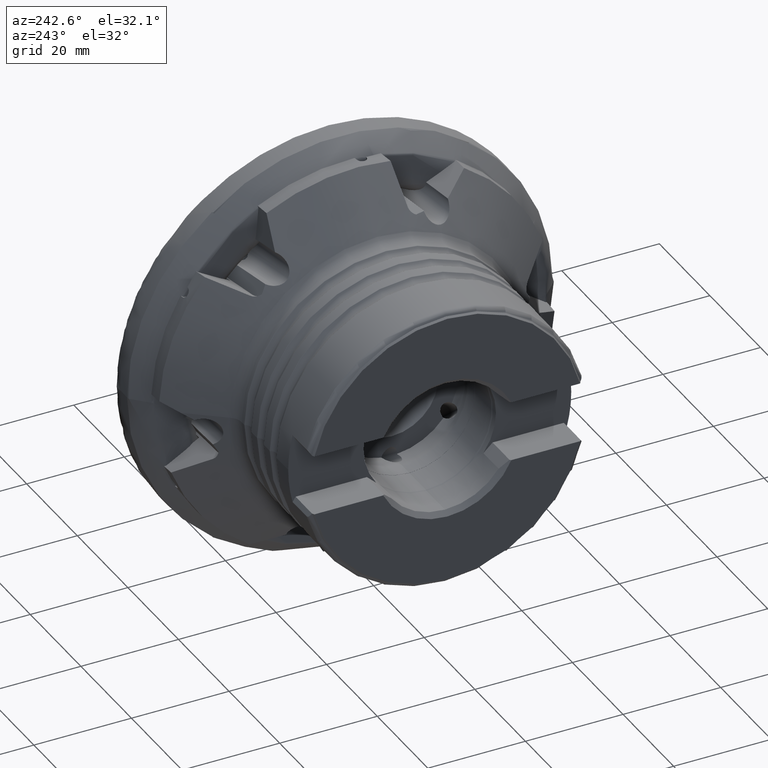
[diagram: clean part render]
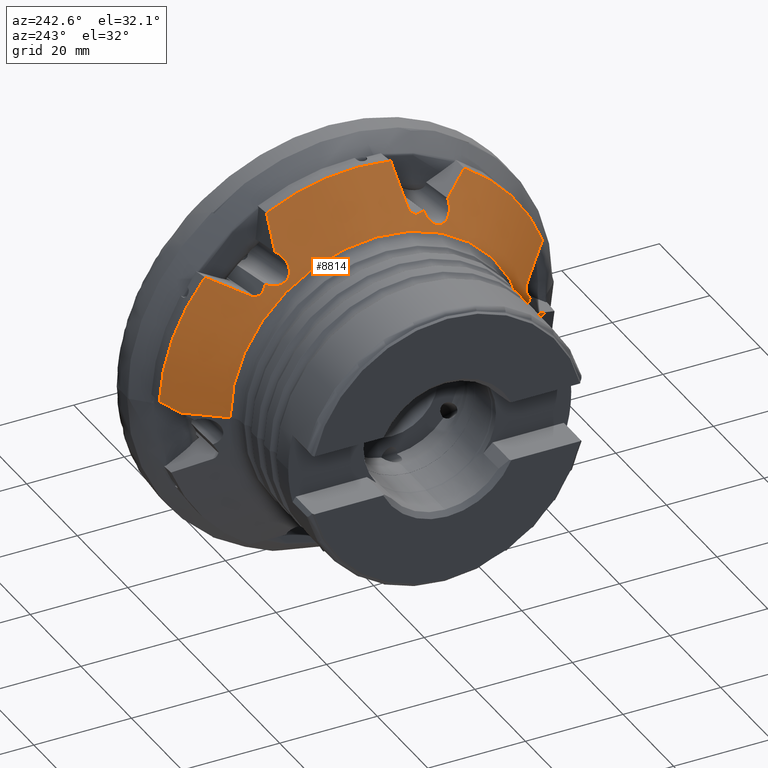
[diagram: same view with one face highlighted and labeled with its STEP entity id]
A machine part, auxiliary view. The second image highlights one B-rep face of the part: STEP entity #8814.
In plain terms, the highlighted conical surface has half-angle 52.12 deg.
Its self-contained STEP definition (entity closure, byte-faithful):
#60 = ORIENTED_EDGE ( 'NONE', *, *, #5824, .F. ) ;
#187 = VERTEX_POINT ( 'NONE', #9917 ) ;
#301 = AXIS2_PLACEMENT_3D ( 'NONE', #5719, #3611, #8317 ) ;
#349 = CARTESIAN_POINT ( 'NONE',  ( -20.53191035383005700, -31.09891763612379400, 3.700706190438604300 ) ) ;
#367 = ORIENTED_EDGE ( 'NONE', *, *, #7430, .F. ) ;
#393 = CARTESIAN_POINT ( 'NONE',  ( -19.32813698998549200, -32.85281436414701500, 0.9075754856589548500 ) ) ;
#404 = B_SPLINE_CURVE_WITH_KNOTS ( 'NONE', 3,
 ( #941, #12041, #4045, #11039, #5024, #12082, #6002, #13085, #6998, #983, #8001, #2017, #8992, #3046, #10025, #4085, #11079, #5066, #12130, #6034, #13124, #7042, #1031, #8038, #2059, #9036, #3087, #10066, #4125, #11122, #5101, #12170, #6081, #13160 ),
 .UNSPECIFIED., .F., .F.,
 ( 4, 2, 2, 2, 2, 2, 2, 2, 2, 2, 2, 2, 2, 2, 2, 2, 4 ),
 ( 2.423241580572312200E-007, 0.001307575764782235600, 0.001961242485094321700, 0.002614909205406407100, 0.003268575925718492900, 0.003922242646030578300, 0.004249076006186625100, 0.004575909366342671900, 0.005229576086654764600, 0.005883242806966857400, 0.006536909527278950100, 0.007190576247591042900, 0.007844242967903135600, 0.008497909688215227500, 0.009151576408527321200, 0.009805243128839413000, 0.01045890984915150500 ),
 .UNSPECIFIED. ) ;
#408 = CARTESIAN_POINT ( 'NONE',  ( -20.07002082571128200, 17.27141744353848600, 26.83451589609489900 ) ) ;
#414 = CARTESIAN_POINT ( 'NONE',  ( -18.67299614523998500, -32.25723788395303200, 9.780671549945624900 ) ) ;
#439 = CARTESIAN_POINT ( 'NONE',  ( -18.44781668979574400, -33.98786952236923800, 0.7832599673557363300 ) ) ;
#444 = CARTESIAN_POINT ( 'NONE',  ( -13.35000000000000500, 18.52162847736817900, 36.07286762299808200 ) ) ;
#447 = CARTESIAN_POINT ( 'NONE',  ( -17.74871450086546400, 18.32106112423273100, 29.69921801289366700 ) ) ;
#693 = CARTESIAN_POINT ( 'NONE',  ( -17.68779383908785600, -34.95837666453000700, 1.044694375687396800 ) ) ;
#789 = CARTESIAN_POINT ( 'NONE',  ( -13.35000000000000100, -6.910210592282299800, 39.95687036756391600 ) ) ;
#840 = B_SPLINE_CURVE_WITH_KNOTS ( 'NONE', 3,
 ( #1212, #7215, #9199, #3259 ),
 .UNSPECIFIED., .F., .F.,
 ( 4, 4 ),
 ( 0.01735655196813864000, 0.01924854367166612200 ),
 .UNSPECIFIED. ) ;
#852 = VERTEX_POINT ( 'NONE', #994 ) ;
#941 = CARTESIAN_POINT ( 'NONE',  ( -19.13790562503851700, -10.75313039755951300, 31.31499999999992700 ) ) ;
#983 = CARTESIAN_POINT ( 'NONE',  ( -20.54294308932776400, -12.41669416767395800, 28.73657452671404800 ) ) ;
#994 = CARTESIAN_POINT ( 'NONE',  ( -21.43421174296403800, 30.15796290571253700, 0.0000000000000000000 ) ) ;
#1031 = CARTESIAN_POINT ( 'NONE',  ( -19.43752468642944500, -15.51085800684743500, 28.81527541554285300 ) ) ;
#1085 = B_SPLINE_CURVE_WITH_KNOTS ( 'NONE', 3,
 ( #3340, #9275, #7323, #1320 ),
 .UNSPECIFIED., .F., .F.,
 ( 4, 4 ),
 ( 3.337997468347535300E-007, 0.008930299138307685700 ),
 .UNSPECIFIED. ) ;
#1119 = CARTESIAN_POINT ( 'NONE',  ( -13.35000000000000000, -1.634903476861717000E-015, 0.0000000000000000000 ) ) ;
#1212 = CARTESIAN_POINT ( 'NONE',  ( -19.56873642703969900, 22.66810556429294000, 23.36768945130978300 ) ) ;
#1213 = ORIENTED_EDGE ( 'NONE', *, *, #8012, .F. ) ;
#1225 = EDGE_CURVE ( 'NONE', #5100, #1836, #12206, .T. ) ;
#1275 = CARTESIAN_POINT ( 'NONE',  ( -19.13790562503851700, -10.75313039755951300, 31.31499999999992700 ) ) ;
#1320 = CARTESIAN_POINT ( 'NONE',  ( -18.67299614523999200, 24.59892897030124800, 23.04525168844818200 ) ) ;
#1380 = CARTESIAN_POINT ( 'NONE',  ( -19.34758293695757600, -32.25531921102425800, 6.171944795337353200 ) ) ;
#1426 = CARTESIAN_POINT ( 'NONE',  ( -20.55686084946876200, -31.12658912357926500, 3.157159859357591400 ) ) ;
#1473 = VERTEX_POINT ( 'NONE', #444 ) ;
#1475 = CARTESIAN_POINT ( 'NONE',  ( -18.66877654356424200, -33.70437591719851900, 0.7563665164113675400 ) ) ;
#1487 = CARTESIAN_POINT ( 'NONE',  ( -19.69815349285019600, 17.18607676588884600, 27.45418216306683900 ) ) ;
#1532 = CARTESIAN_POINT ( 'NONE',  ( -17.43646012122117400, 18.70266596926467900, 29.93481037936062400 ) ) ;
#1707 = CARTESIAN_POINT ( 'NONE',  ( -16.82409201408978200, -36.07652554619652100, 0.8758484315454032600 ) ) ;
#1752 = CARTESIAN_POINT ( 'NONE',  ( -16.30508486717780100, -36.75131776196898400, 0.4370176232126853400 ) ) ;
#1763 = CARTESIAN_POINT ( 'NONE',  ( -17.33792165716884900, -35.39914781119752300, 1.316877446364942600 ) ) ;
#1825 = DIRECTION ( 'NONE',  ( 0.6140123647624576900, -0.7892964056163023200, 9.666093167165157200E-017 ) ) ;
#1836 = VERTEX_POINT ( 'NONE', #10004 ) ;
#1840 = CARTESIAN_POINT ( 'NONE',  ( -15.13349813407131700, -7.160864908734795100, 37.58685032122127000 ) ) ;
#1844 = ORIENTED_EDGE ( 'NONE', *, *, #2981, .F. ) ;
#1918 = EDGE_CURVE ( 'NONE', #852, #11550, #9043, .T. ) ;
#1927 = CARTESIAN_POINT ( 'NONE',  ( -13.35000000000000500, 18.52162847736817900, 36.07286762299808200 ) ) ;
#1946 = CARTESIAN_POINT ( 'NONE',  ( -14.70375579445514100, 18.62488103974918700, 34.06365132502151000 ) ) ;
#1992 = CARTESIAN_POINT ( 'NONE',  ( -17.33792165716885900, 18.84002322782172100, 29.99812255363481800 ) ) ;
#2001 = ORIENTED_EDGE ( 'NONE', *, *, #7571, .F. ) ;
#2011 = CARTESIAN_POINT ( 'NONE',  ( -16.03717606796058000, 18.73052827719856900, 32.04137734377089000 ) ) ;
#2017 = CARTESIAN_POINT ( 'NONE',  ( -20.55042400522112100, -12.91681685873732900, 28.50412686973539800 ) ) ;
#2059 = CARTESIAN_POINT ( 'NONE',  ( -19.04623257589636200, -15.90172644372490200, 29.17554253126909800 ) ) ;
#2139 = DIRECTION ( 'NONE',  ( -1.283395913176429500E-016, 1.000000000000000000, 0.0000000000000000000 ) ) ;
#2169 = ORIENTED_EDGE ( 'NONE', *, *, #3888, .F. ) ;
#2175 = B_SPLINE_CURVE_WITH_KNOTS ( 'NONE', 3,
 ( #12288, #10871, #11302, #11279 ),
 .UNSPECIFIED., .F., .F.,
 ( 4, 4 ),
 ( 0.004784447667640432400, 0.009184911650264110400 ),
 .UNSPECIFIED. ) ;
#2202 = VERTEX_POINT ( 'NONE', #8034 ) ;
#2286 = CARTESIAN_POINT ( 'NONE',  ( -19.13790562503851000, 21.74302032072993600, 24.96998409449311400 ) ) ;
#2361 = VERTEX_POINT ( 'NONE', #3317 ) ;
#2406 = CARTESIAN_POINT ( 'NONE',  ( -18.78464250492744000, 24.46028500282797000, 22.98332381552399500 ) ) ;
#2446 = CARTESIAN_POINT ( 'NONE',  ( -20.50260530538487900, -31.24537740883605600, 2.631802227246331500 ) ) ;
#2458 = CARTESIAN_POINT ( 'NONE',  ( -20.35205913087240900, 19.52036837232704500, 24.78548433611372900 ) ) ;
#2504 = CARTESIAN_POINT ( 'NONE',  ( -19.39174948821849800, 17.20947684061517100, 27.90329556235500200 ) ) ;
#2585 = EDGE_LOOP ( 'NONE', ( #7201, #10280, #10295, #1213, #2001, #9754, #5926, #6478, #1844, #9035, #11022, #12853, #60, #4376, #8537, #2169, #5936, #8013, #13051, #3550, #3917, #367, #11333, #7124 ) ) ;
#2617 = CARTESIAN_POINT ( 'NONE',  ( -13.35000000000000500, 31.14855949789092200, 25.96285310219867200 ) ) ;
#2732 = DIRECTION ( 'NONE',  ( 1.000000000000000000, 1.224646799147353700E-016, -0.0000000000000000000 ) ) ;
#2740 = CARTESIAN_POINT ( 'NONE',  ( -18.25521645135683000, -34.23497746990161500, 0.8067017146957640200 ) ) ;
#2769 = EDGE_CURVE ( 'NONE', #187, #1836, #3355, .T. ) ;
#2774 = CARTESIAN_POINT ( 'NONE',  ( -13.34999999999999600, -38.05877009017319100, 13.99401726536509800 ) ) ;
#2818 = VERTEX_POINT ( 'NONE', #11102 ) ;
#2941 = CARTESIAN_POINT ( 'NONE',  ( -18.89122709090899800, -7.718539219195017500, 32.52371317198317500 ) ) ;
#2958 = VERTEX_POINT ( 'NONE', #9368 ) ;
#2979 = B_SPLINE_CURVE_WITH_KNOTS ( 'NONE', 3,
 ( #11823, #2740, #6748, #693, #7742, #1763 ),
 .UNSPECIFIED., .F., .F.,
 ( 4, 2, 4 ),
 ( 0.01967380727873903700, 0.02060760115775429900, 0.02154139503676955800 ),
 .UNSPECIFIED. ) ;
#2981 = EDGE_CURVE ( 'NONE', #7732, #10359, #7067, .T. ) ;
#3046 = CARTESIAN_POINT ( 'NONE',  ( -20.51850065855567400, -13.22970944813355500, 28.40552877989736300 ) ) ;
#3051 = B_SPLINE_CURVE_WITH_KNOTS ( 'NONE', 3,
 ( #4792, #8750, #11880, #5804 ),
 .UNSPECIFIED., .F., .F.,
 ( 4, 4 ),
 ( 0.01605224761913874900, 0.01793870707272481400 ),
 .UNSPECIFIED. ) ;
#3087 = CARTESIAN_POINT ( 'NONE',  ( -18.64082278672837500, -16.20700579546804900, 29.60259797144029600 ) ) ;
#3256 = B_SPLINE_CURVE_WITH_KNOTS ( 'NONE', 3,
 ( #7422, #7385, #8409, #2458, #9427, #3497, #10463, #4502, #11549, #5474, #12549, #6471, #408, #7469, #1487, #8452, #2504, #9465, #3539, #10510, #4552, #11586, #5520, #12589, #6510, #447, #7516, #1532, #8494 ),
 .UNSPECIFIED., .F., .F.,
 ( 4, 2, 2, 2, 2, 2, 2, 2, 2, 2, 2, 2, 1, 2, 4 ),
 ( 0.004387610324422419600, 0.004925790725347831500, 0.005463971126273243400, 0.006540331928124068000, 0.007078512329049483300, 0.007616692729974899500, 0.008693053531825725000, 0.009231233932751145600, 0.009769414333676562600, 0.01030759473460198000, 0.01084577513552740000, 0.01138395553645281700, 0.01192213593737823600, 0.01246031633830365500, 0.01299849673922907400 ),
 .UNSPECIFIED. ) ;
#3259 = CARTESIAN_POINT ( 'NONE',  ( -19.13790562503851000, 21.74302032072993600, 24.96998409449311400 ) ) ;
#3286 = VERTEX_POINT ( 'NONE', #7589 ) ;
#3317 = CARTESIAN_POINT ( 'NONE',  ( -19.56873642703969900, 22.66810556429294000, 23.36768945130978300 ) ) ;
#3340 = CARTESIAN_POINT ( 'NONE',  ( -13.35000000000000500, 31.14855949789092200, 25.96285310219867200 ) ) ;
#3342 = CARTESIAN_POINT ( 'NONE',  ( -13.34999999999999400, -40.54999999999999700, 4.965942770542516900E-015 ) ) ;
#3355 = LINE ( 'NONE', #3342, #4003 ) ;
#3387 = AXIS2_PLACEMENT_3D ( 'NONE', #12396, #7317, #5325 ) ;
#3434 = CARTESIAN_POINT ( 'NONE',  ( -19.08373192855588800, 23.98972347960159700, 22.92113743458514500 ) ) ;
#3486 = CARTESIAN_POINT ( 'NONE',  ( -20.37118376889024100, -31.45176179490016800, 2.145835207566176200 ) ) ;
#3497 = CARTESIAN_POINT ( 'NONE',  ( -20.52825328581205600, 18.85209652616744000, 25.01631178896399600 ) ) ;
#3539 = CARTESIAN_POINT ( 'NONE',  ( -19.06722445239076800, 17.30885758315604100, 28.33174937566975200 ) ) ;
#3550 = ORIENTED_EDGE ( 'NONE', *, *, #6082, .F. ) ;
#3603 = CARTESIAN_POINT ( 'NONE',  ( -17.33792165716884900, -35.39914781119752300, 1.316877446364942600 ) ) ;
#3611 = DIRECTION ( 'NONE',  ( 1.000000000000000000, 1.224646799147353700E-016, -0.0000000000000000000 ) ) ;
#3620 = CARTESIAN_POINT ( 'NONE',  ( -15.78180706918503500, -37.42397731867724500, -7.065009996000125700E-015 ) ) ;
#3888 = EDGE_CURVE ( 'NONE', #2202, #1473, #5065, .T. ) ;
#3893 = CARTESIAN_POINT ( 'NONE',  ( -18.78464250492744000, -7.673999786233761900, 32.67489010401853000 ) ) ;
#3911 = CARTESIAN_POINT ( 'NONE',  ( -19.43675162790003300, -31.88127369441804500, 7.410014151258654800 ) ) ;
#3917 = ORIENTED_EDGE ( 'NONE', *, *, #6426, .F. ) ;
#3989 = CARTESIAN_POINT ( 'NONE',  ( -19.17149036419708700, -7.948860421014799700, 32.09730829230861800 ) ) ;
#4003 = VECTOR ( 'NONE', #1825, 1000.000000000000200 ) ;
#4044 = VERTEX_POINT ( 'NONE', #4843 ) ;
#4045 = CARTESIAN_POINT ( 'NONE',  ( -19.62906548280289000, -10.88510391595937700, 30.60126616452427900 ) ) ;
#4085 = CARTESIAN_POINT ( 'NONE',  ( -20.43503618690427700, -13.65670369286700000, 28.32244786492447700 ) ) ;
#4125 = CARTESIAN_POINT ( 'NONE',  ( -18.23756024525300400, -16.42130891718855400, 30.07625870733616900 ) ) ;
#4197 = EDGE_CURVE ( 'NONE', #11550, #2818, #2175, .T. ) ;
#4260 = CARTESIAN_POINT ( 'NONE',  ( -18.67299614523998800, -7.658308913651805700, 32.82592323839393300 ) ) ;
#4266 = AXIS2_PLACEMENT_3D ( 'NONE', #8682, #2732, #9692 ) ;
#4340 = CARTESIAN_POINT ( 'NONE',  ( -19.81021439846698200, 20.74122426229869400, 24.69020266704735200 ) ) ;
#4361 = VERTEX_POINT ( 'NONE', #9489 ) ;
#4368 = AXIS2_PLACEMENT_3D ( 'NONE', #8890, #8586, #7945 ) ;
#4376 = ORIENTED_EDGE ( 'NONE', *, *, #10362, .F. ) ;
#4414 = CARTESIAN_POINT ( 'NONE',  ( -19.13790562503851000, -32.49615071828940000, 6.345015905506690100 ) ) ;
#4438 = CARTESIAN_POINT ( 'NONE',  ( -18.67299614523998500, -32.25723788395303200, 9.780671549945624900 ) ) ;
#4455 = CARTESIAN_POINT ( 'NONE',  ( -19.39990855374677300, 23.31994039169957800, 23.02885931976733100 ) ) ;
#4459 = CARTESIAN_POINT ( 'NONE',  ( -19.54442098411075400, -32.03742348957600000, 5.964361522395767800 ) ) ;
#4496 = CARTESIAN_POINT ( 'NONE',  ( -20.17279657104035500, -31.73311211746522500, 1.721954831791988600 ) ) ;
#4502 = CARTESIAN_POINT ( 'NONE',  ( -20.54223651949924100, 18.10969692828936300, 25.53524034965446500 ) ) ;
#4527 = VERTEX_POINT ( 'NONE', #8289 ) ;
#4552 = CARTESIAN_POINT ( 'NONE',  ( -18.73600056467667200, 17.47556567796053900, 28.72876844233148900 ) ) ;
#4627 = CARTESIAN_POINT ( 'NONE',  ( -18.89122709090900200, -32.02563144193354100, 9.577405542062125600 ) ) ;
#4642 = CARTESIAN_POINT ( 'NONE',  ( -19.08373192855588500, -31.84514904178606500, 9.315141245806296800 ) ) ;
#4665 = CARTESIAN_POINT ( 'NONE',  ( -18.78464250492743700, -32.13428478906170900, 9.691566288494394500 ) ) ;
#4724 = CARTESIAN_POINT ( 'NONE',  ( -16.03707588452182300, -18.38352311772189700, 32.24187336854071600 ) ) ;
#4792 = CARTESIAN_POINT ( 'NONE',  ( -19.56873642703969600, -8.902959910433525100, 31.31499999999994100 ) ) ;
#4832 = B_SPLINE_CURVE_WITH_KNOTS ( 'NONE', 3,
 ( #10908, #3911, #12973, #6894 ),
 .UNSPECIFIED., .F., .F.,
 ( 4, 4 ),
 ( 0.01735655196813856400, 0.01924854367166603200 ),
 .UNSPECIFIED. ) ;
#4843 = CARTESIAN_POINT ( 'NONE',  ( -17.33792165716885900, -16.55912458337587300, 31.31499999999987000 ) ) ;
#4868 = EDGE_CURVE ( 'NONE', #1473, #7016, #5046, .T. ) ;
#4902 = CARTESIAN_POINT ( 'NONE',  ( -18.67299614523998800, -7.658308913651805700, 32.82592323839393300 ) ) ;
#4955 = FACE_OUTER_BOUND ( 'NONE', #2585, .T. ) ;
#4975 = CARTESIAN_POINT ( 'NONE',  ( -19.50616842256001600, -8.577047331390589900, 31.49127487094713400 ) ) ;
#5007 = B_SPLINE_CURVE_WITH_KNOTS ( 'NONE', 3,
 ( #10885, #3893, #2941, #9924, #3989, #10983, #4975, #12033 ),
 .UNSPECIFIED., .F., .F.,
 ( 4, 2, 2, 4 ),
 ( 0.0000000000000000000, 0.0005632919519508322300, 0.001126583903901664500, 0.002253167807803311600 ),
 .UNSPECIFIED. ) ;
#5024 = CARTESIAN_POINT ( 'NONE',  ( -20.04567060910675000, -11.22930884474898100, 29.90449412105993000 ) ) ;
#5046 = CIRCLE ( 'NONE', #4368, 40.54999999999999700 ) ;
#5065 = B_SPLINE_CURVE_WITH_KNOTS ( 'NONE', 3,
 ( #1992, #2011, #1946, #1927 ),
 .UNSPECIFIED., .F., .F.,
 ( 4, 4 ),
 ( 0.002773552780315555100, 0.01004718225931144700 ),
 .UNSPECIFIED. ) ;
#5066 = CARTESIAN_POINT ( 'NONE',  ( -20.21607621580310600, -14.28325091071246600, 28.32709186074084700 ) ) ;
#5100 = VERTEX_POINT ( 'NONE', #6055 ) ;
#5101 = CARTESIAN_POINT ( 'NONE',  ( -17.83923611411979900, -16.54583890171420200, 30.59139654158942500 ) ) ;
#5232 = EDGE_CURVE ( 'NONE', #4527, #9166, #6968, .T. ) ;
#5306 = B_SPLINE_CURVE_WITH_KNOTS ( 'NONE', 3,
 ( #2286, #9256, #10286, #4340, #11371, #5309 ),
 .UNSPECIFIED., .F., .F.,
 ( 4, 2, 4 ),
 ( 0.002536588788353720200, 0.003462099556388069900, 0.004387610324422419600 ),
 .UNSPECIFIED. ) ;
#5309 = CARTESIAN_POINT ( 'NONE',  ( -20.08692413420288900, 20.18706131802989400, 24.68696096278501200 ) ) ;
#5325 = DIRECTION ( 'NONE',  ( -1.283395913176429500E-016, 1.000000000000000000, 0.0000000000000000000 ) ) ;
#5358 = VERTEX_POINT ( 'NONE', #1275 ) ;
#5413 = CARTESIAN_POINT ( 'NONE',  ( -19.56873642703969900, 22.66810556429294000, 23.36768945130978300 ) ) ;
#5416 = CARTESIAN_POINT ( 'NONE',  ( -20.07211615594276600, -31.48432677796171600, 5.195856934551891900 ) ) ;
#5465 = CARTESIAN_POINT ( 'NONE',  ( -19.92400687685232800, -32.07000255310754300, 1.375857453316458500 ) ) ;
#5474 = CARTESIAN_POINT ( 'NONE',  ( -20.45240453513358900, 17.74782911573619500, 25.92804805281475900 ) ) ;
#5480 = CARTESIAN_POINT ( 'NONE',  ( -13.34999999999999600, -38.05877009017319100, 13.99401726536509800 ) ) ;
#5520 = CARTESIAN_POINT ( 'NONE',  ( -18.40123763206007400, 17.70439963151147800, 29.09326773314945300 ) ) ;
#5700 = CARTESIAN_POINT ( 'NONE',  ( -14.70366655592763100, -20.18766497799136400, 33.16150611392993100 ) ) ;
#5701 = AXIS2_PLACEMENT_3D ( 'NONE', #1119, #8111, #2139 ) ;
#5719 = CARTESIAN_POINT ( 'NONE',  ( -13.35000000000000000, -1.634903476861717000E-015, 0.0000000000000000000 ) ) ;
#5804 = CARTESIAN_POINT ( 'NONE',  ( -19.13790562503851700, -10.75313039755951300, 31.31499999999992700 ) ) ;
#5824 = EDGE_CURVE ( 'NONE', #11026, #4361, #5007, .T. ) ;
#5926 = ORIENTED_EDGE ( 'NONE', *, *, #5232, .F. ) ;
#5936 = ORIENTED_EDGE ( 'NONE', *, *, #11187, .F. ) ;
#6002 = CARTESIAN_POINT ( 'NONE',  ( -20.29880109884864600, -11.59042090888604900, 29.41711924328050300 ) ) ;
#6034 = CARTESIAN_POINT ( 'NONE',  ( -19.91759811020478200, -14.85708949535020600, 28.46367605331141700 ) ) ;
#6055 = CARTESIAN_POINT ( 'NONE',  ( -17.33792165716884900, -35.39914781119752300, 1.316877446364942600 ) ) ;
#6081 = CARTESIAN_POINT ( 'NONE',  ( -17.45899378529432200, -16.57614016132186300, 31.12994749367951600 ) ) ;
#6082 = EDGE_CURVE ( 'NONE', #2958, #2361, #12835, .T. ) ;
#6293 = CARTESIAN_POINT ( 'NONE',  ( -15.78180706918472600, 37.42397731867765700, 1.313674792309632300E-014 ) ) ;
#6415 = CARTESIAN_POINT ( 'NONE',  ( -20.44567240532511600, -31.14427239630760300, 4.233100406005434900 ) ) ;
#6426 = EDGE_CURVE ( 'NONE', #6588, #2958, #1085, .T. ) ;
#6461 = CARTESIAN_POINT ( 'NONE',  ( -19.54131292816434100, -32.57562149189669000, 1.024240799332891000 ) ) ;
#6471 = CARTESIAN_POINT ( 'NONE',  ( -20.23024893545763100, 17.38232241987686400, 26.51786844033769000 ) ) ;
#6474 = CARTESIAN_POINT ( 'NONE',  ( -16.90969219147109500, -34.19911649922460100, 11.18796920173114300 ) ) ;
#6478 = ORIENTED_EDGE ( 'NONE', *, *, #12855, .F. ) ;
#6510 = CARTESIAN_POINT ( 'NONE',  ( -17.96109113495569100, 18.08861101705742400, 29.52167515760979200 ) ) ;
#6588 = VERTEX_POINT ( 'NONE', #2617 ) ;
#6612 = CARTESIAN_POINT ( 'NONE',  ( -17.33792165716885900, -16.55912458337587300, 31.31499999999987000 ) ) ;
#6617 = B_SPLINE_CURVE_WITH_KNOTS ( 'NONE', 3,
 ( #6612, #4724, #5700, #12775 ),
 .UNSPECIFIED., .F., .F.,
 ( 4, 4 ),
 ( 0.0001312978652771379200, 0.007405046458793385400 ),
 .UNSPECIFIED. ) ;
#6667 = EDGE_CURVE ( 'NONE', #4361, #5358, #3051, .T. ) ;
#6743 = EDGE_CURVE ( 'NONE', #9166, #7946, #4832, .T. ) ;
#6748 = CARTESIAN_POINT ( 'NONE',  ( -18.06369279143671800, -34.47995746568739900, 0.8638218953870092600 ) ) ;
#6774 = CARTESIAN_POINT ( 'NONE',  ( -13.35000000000000500, 40.54999999999999700, 0.0000000000000000000 ) ) ;
#6894 = CARTESIAN_POINT ( 'NONE',  ( -19.13790562503851000, -32.49615071828940000, 6.345015905506690100 ) ) ;
#6968 = B_SPLINE_CURVE_WITH_KNOTS ( 'NONE', 3,
 ( #4438, #4665, #4627, #4642, #12891, #12823, #12685, #7379 ),
 .UNSPECIFIED., .F., .F.,
 ( 4, 2, 2, 4 ),
 ( 1.734723475976807100E-018, 0.0005632919519508327800, 0.001126583903901663800, 0.002253167807803315100 ),
 .UNSPECIFIED. ) ;
#6998 = CARTESIAN_POINT ( 'NONE',  ( -20.47775952885312400, -12.05630191639227900, 28.98040010682294800 ) ) ;
#7016 = VERTEX_POINT ( 'NONE', #9207 ) ;
#7042 = CARTESIAN_POINT ( 'NONE',  ( -19.56466616607158200, -15.35996237392826000, 28.71088168575997600 ) ) ;
#7067 = CIRCLE ( 'NONE', #301, 40.54999999999999700 ) ;
#7124 = ORIENTED_EDGE ( 'NONE', *, *, #1918, .F. ) ;
#7201 = ORIENTED_EDGE ( 'NONE', *, *, #11939, .T. ) ;
#7215 = CARTESIAN_POINT ( 'NONE',  ( -19.43675162790003300, 22.35789734460131600, 23.90498584874115900 ) ) ;
#7317 = DIRECTION ( 'NONE',  ( 1.000000000000000000, 1.224646799147353700E-016, -0.0000000000000000000 ) ) ;
#7323 = CARTESIAN_POINT ( 'NONE',  ( -16.90969396756930000, 26.78862158948658500, 24.02331808928226300 ) ) ;
#7379 = CARTESIAN_POINT ( 'NONE',  ( -19.56873642703969600, -31.57106547472643500, 7.947310548690030200 ) ) ;
#7385 = CARTESIAN_POINT ( 'NONE',  ( -20.16261651457318400, 20.02208766557320300, 24.69617362872244100 ) ) ;
#7414 = CARTESIAN_POINT ( 'NONE',  ( -20.54919536120863900, -31.09789913704126700, 3.517035886651194200 ) ) ;
#7422 = CARTESIAN_POINT ( 'NONE',  ( -20.08692413420288900, 20.18706131802989400, 24.68696096278501200 ) ) ;
#7428 = CARTESIAN_POINT ( 'NONE',  ( -15.13349574849280900, -36.13160225854056800, 12.59193611198146500 ) ) ;
#7430 = EDGE_CURVE ( 'NONE', #2818, #6588, #9308, .T. ) ;
#7457 = CARTESIAN_POINT ( 'NONE',  ( -18.89417609575554400, -33.41422006176302500, 0.7743685588672039000 ) ) ;
#7469 = CARTESIAN_POINT ( 'NONE',  ( -19.79627641985014800, 17.19639739313954500, 27.29884960185604500 ) ) ;
#7511 = VERTEX_POINT ( 'NONE', #11401 ) ;
#7516 = CARTESIAN_POINT ( 'NONE',  ( -17.53935193146961800, 18.57005723134597400, 29.86156599630606600 ) ) ;
#7571 = EDGE_CURVE ( 'NONE', #7946, #8396, #12892, .T. ) ;
#7589 = CARTESIAN_POINT ( 'NONE',  ( -20.08692413420288900, 20.18706131802989400, 24.68696096278501200 ) ) ;
#7732 = VERTEX_POINT ( 'NONE', #9301 ) ;
#7742 = CARTESIAN_POINT ( 'NONE',  ( -17.50783591441897300, -35.18617647119140900, 1.166344262262966700 ) ) ;
#7945 = DIRECTION ( 'NONE',  ( -1.283395913176429500E-016, 1.000000000000000000, 0.0000000000000000000 ) ) ;
#7946 = VERTEX_POINT ( 'NONE', #8647 ) ;
#8001 = CARTESIAN_POINT ( 'NONE',  ( -20.55788831655602800, -12.61374646923964700, 28.62967333747729300 ) ) ;
#8012 = EDGE_CURVE ( 'NONE', #8396, #5100, #2979, .T. ) ;
#8013 = ORIENTED_EDGE ( 'NONE', *, *, #9320, .F. ) ;
#8034 = CARTESIAN_POINT ( 'NONE',  ( -17.33792165716885900, 18.84002322782172100, 29.99812255363481800 ) ) ;
#8038 = CARTESIAN_POINT ( 'NONE',  ( -19.17837348940991800, -15.78146681764103900, 29.04765645631432100 ) ) ;
#8111 = DIRECTION ( 'NONE',  ( 1.000000000000000000, 1.224646799147353700E-016, -0.0000000000000000000 ) ) ;
#8187 = B_SPLINE_CURVE_WITH_KNOTS ( 'NONE', 3,
 ( #5480, #7428, #6474, #414 ),
 .UNSPECIFIED., .F., .F.,
 ( 4, 4 ),
 ( 3.338000833442601500E-007, 0.008930300667216705900 ),
 .UNSPECIFIED. ) ;
#8289 = CARTESIAN_POINT ( 'NONE',  ( -18.67299614523998500, -32.25723788395303200, 9.780671549945624900 ) ) ;
#8317 = DIRECTION ( 'NONE',  ( -1.283395913176429500E-016, 1.000000000000000000, 0.0000000000000000000 ) ) ;
#8351 = CARTESIAN_POINT ( 'NONE',  ( -18.67299614523999200, 24.59892897030124800, 23.04525168844818200 ) ) ;
#8396 = VERTEX_POINT ( 'NONE', #439 ) ;
#8400 = CARTESIAN_POINT ( 'NONE',  ( -20.54772879209003700, -31.15581837816141000, 2.980064195806644700 ) ) ;
#8409 = CARTESIAN_POINT ( 'NONE',  ( -20.23185102754181800, 19.85407164468784600, 24.71750226650961900 ) ) ;
#8442 = CARTESIAN_POINT ( 'NONE',  ( -18.44781668979574400, -33.98786952236923800, 0.7832599673557363300 ) ) ;
#8448 = CIRCLE ( 'NONE', #4266, 30.15796290571254400 ) ;
#8452 = CARTESIAN_POINT ( 'NONE',  ( -19.49601636777390100, 17.19276218747360100, 27.75611925069868800 ) ) ;
#8494 = CARTESIAN_POINT ( 'NONE',  ( -17.33792165716885900, 18.84002322782172100, 29.99812255363481800 ) ) ;
#8537 = ORIENTED_EDGE ( 'NONE', *, *, #4868, .F. ) ;
#8579 = DIRECTION ( 'NONE',  ( 0.6140123647624575700, 0.7892964056163025400, 0.0000000000000000000 ) ) ;
#8586 = DIRECTION ( 'NONE',  ( 1.000000000000000000, 1.224646799147353700E-016, -0.0000000000000000000 ) ) ;
#8647 = CARTESIAN_POINT ( 'NONE',  ( -19.13790562503851000, -32.49615071828940000, 6.345015905506690100 ) ) ;
#8682 = CARTESIAN_POINT ( 'NONE',  ( -21.43421174296403500, -2.624933880326752800E-015, 0.0000000000000000000 ) ) ;
#8736 = VECTOR ( 'NONE', #8579, 1000.000000000000000 ) ;
#8750 = CARTESIAN_POINT ( 'NONE',  ( -19.43675260150902100, -9.523371773206257300, 31.31499999999993400 ) ) ;
#8814 = ADVANCED_FACE ( 'NONE', ( #4955 ), #12051, .T. ) ;
#8890 = CARTESIAN_POINT ( 'NONE',  ( -13.35000000000000000, -1.634903476861717000E-015, 0.0000000000000000000 ) ) ;
#8992 = CARTESIAN_POINT ( 'NONE',  ( -20.54310626985585800, -13.01977481481367400, 28.46758671430093600 ) ) ;
#9035 = ORIENTED_EDGE ( 'NONE', *, *, #10249, .F. ) ;
#9036 = CARTESIAN_POINT ( 'NONE',  ( -18.77743892260357600, -16.11467475406746200, 29.45294436171678500 ) ) ;
#9043 = LINE ( 'NONE', #6774, #8736 ) ;
#9138 = B_SPLINE_CURVE_WITH_KNOTS ( 'NONE', 3,
 ( #789, #1840, #10886, #4902 ),
 .UNSPECIFIED., .F., .F.,
 ( 4, 4 ),
 ( 3.337995381559939800E-007, 0.008930298026350390300 ),
 .UNSPECIFIED. ) ;
#9166 = VERTEX_POINT ( 'NONE', #12179 ) ;
#9199 = CARTESIAN_POINT ( 'NONE',  ( -19.29281274383083700, 22.04958779090700800, 24.43899366019858000 ) ) ;
#9207 = CARTESIAN_POINT ( 'NONE',  ( -13.35000000000000100, -6.910210592282299800, 39.95687036756391600 ) ) ;
#9256 = CARTESIAN_POINT ( 'NONE',  ( -19.31686517883995800, 21.51231954087435500, 24.86583095479950600 ) ) ;
#9275 = CARTESIAN_POINT ( 'NONE',  ( -15.13349724122898400, 28.97073586230092300, 24.99491656920528700 ) ) ;
#9301 = CARTESIAN_POINT ( 'NONE',  ( -13.34999999999999800, -21.97920551018551200, 34.07663459235712400 ) ) ;
#9308 = CIRCLE ( 'NONE', #5701, 40.54999999999999700 ) ;
#9320 = EDGE_CURVE ( 'NONE', #7511, #3286, #5306, .T. ) ;
#9368 = CARTESIAN_POINT ( 'NONE',  ( -18.67299614523999200, 24.59892897030124800, 23.04525168844818200 ) ) ;
#9372 = CARTESIAN_POINT ( 'NONE',  ( -18.89122709090901300, 24.30709222273853200, 22.94630762992093100 ) ) ;
#9419 = CARTESIAN_POINT ( 'NONE',  ( -20.46634221787677900, -31.30590363580049700, 2.461893037943496200 ) ) ;
#9427 = CARTESIAN_POINT ( 'NONE',  ( -20.40365396300105500, 19.35342414092914600, 24.83214254925158200 ) ) ;
#9465 = CARTESIAN_POINT ( 'NONE',  ( -19.17758681363339000, 17.26734537303887500, 28.19087061236517000 ) ) ;
#9489 = CARTESIAN_POINT ( 'NONE',  ( -19.56873642703969600, -8.902959910433525100, 31.31499999999994100 ) ) ;
#9509 = EDGE_CURVE ( 'NONE', #5358, #4044, #404, .T. ) ;
#9584 = EDGE_CURVE ( 'NONE', #2361, #7511, #840, .T. ) ;
#9692 = DIRECTION ( 'NONE',  ( -1.150424835656399400E-016, 1.000000000000000000, 0.0000000000000000000 ) ) ;
#9754 = ORIENTED_EDGE ( 'NONE', *, *, #6743, .F. ) ;
#9917 = CARTESIAN_POINT ( 'NONE',  ( -21.43421174296403100, -30.15796290571254400, 3.693285274128547500E-015 ) ) ;
#9924 = CARTESIAN_POINT ( 'NONE',  ( -19.08373192855588500, -7.855425562184475300, 32.23627868039156400 ) ) ;
#10004 = CARTESIAN_POINT ( 'NONE',  ( -15.78180706918503500, -37.42397731867724500, -7.065009996000125700E-015 ) ) ;
#10025 = CARTESIAN_POINT ( 'NONE',  ( -20.50100783309561700, -13.33740724325584800, 28.37995335982459700 ) ) ;
#10066 = CARTESIAN_POINT ( 'NONE',  ( -18.37141551254007900, -16.35987905300466100, 29.91371950471075200 ) ) ;
#10249 = EDGE_CURVE ( 'NONE', #4044, #7732, #6617, .T. ) ;
#10280 = ORIENTED_EDGE ( 'NONE', *, *, #2769, .T. ) ;
#10286 = CARTESIAN_POINT ( 'NONE',  ( -19.49135808049620200, 21.26090422288121200, 24.78669304665555400 ) ) ;
#10295 = ORIENTED_EDGE ( 'NONE', *, *, #1225, .F. ) ;
#10359 = VERTEX_POINT ( 'NONE', #2774 ) ;
#10362 = EDGE_CURVE ( 'NONE', #7016, #11026, #9138, .T. ) ;
#10406 = CARTESIAN_POINT ( 'NONE',  ( -19.17149036419709400, 23.82265416373282100, 22.93256920188974100 ) ) ;
#10451 = CARTESIAN_POINT ( 'NONE',  ( -20.31129527155150800, -31.53866842047624200, 1.995950662728261500 ) ) ;
#10463 = CARTESIAN_POINT ( 'NONE',  ( -20.56639778048263200, 18.53644612595773500, 25.19059691552260500 ) ) ;
#10510 = CARTESIAN_POINT ( 'NONE',  ( -18.84674451668441000, 17.41292059774458400, 28.60025575134643500 ) ) ;
#10871 = CARTESIAN_POINT ( 'NONE',  ( -14.98038681889639700, 38.45418152830364300, 0.6693094458029418300 ) ) ;
#10885 = CARTESIAN_POINT ( 'NONE',  ( -18.67299614523998800, -7.658308913651805700, 32.82592323839393300 ) ) ;
#10886 = CARTESIAN_POINT ( 'NONE',  ( -16.90969502989433000, -7.410493103069514500, 35.21128443641107000 ) ) ;
#10908 = CARTESIAN_POINT ( 'NONE',  ( -19.56873642703969600, -31.57106547472643500, 7.947310548690030200 ) ) ;
#10983 = CARTESIAN_POINT ( 'NONE',  ( -19.39990855374676600, -8.283606995246808300, 31.71009045383430800 ) ) ;
#11022 = ORIENTED_EDGE ( 'NONE', *, *, #9509, .F. ) ;
#11026 = VERTEX_POINT ( 'NONE', #4260 ) ;
#11039 = CARTESIAN_POINT ( 'NONE',  ( -19.94628440461401200, -11.12996514476785100, 30.07772158943517800 ) ) ;
#11079 = CARTESIAN_POINT ( 'NONE',  ( -20.37307397724066900, -13.86734455261811400, 28.30844557109803400 ) ) ;
#11102 = CARTESIAN_POINT ( 'NONE',  ( -13.35000000000000700, 40.50083398755361200, 1.996233030640813800 ) ) ;
#11122 = CARTESIAN_POINT ( 'NONE',  ( -17.97142960066204900, -16.51443735455672300, 30.41507813443414300 ) ) ;
#11187 = EDGE_CURVE ( 'NONE', #3286, #2202, #3256, .T. ) ;
#11279 = CARTESIAN_POINT ( 'NONE',  ( -13.35000000000000700, 40.50083398755361200, 1.996233030640813800 ) ) ;
#11302 = CARTESIAN_POINT ( 'NONE',  ( -14.16898133105162000, 39.47939935365705100, 1.334379471476532500 ) ) ;
#11333 = ORIENTED_EDGE ( 'NONE', *, *, #4197, .F. ) ;
#11371 = CARTESIAN_POINT ( 'NONE',  ( -19.95675567587477800, 20.47076710056690600, 24.67111790809047600 ) ) ;
#11401 = CARTESIAN_POINT ( 'NONE',  ( -19.13790562503851000, 21.74302032072993600, 24.96998409449311400 ) ) ;
#11487 = CARTESIAN_POINT ( 'NONE',  ( -19.50616842256000500, 22.98372037010349800, 23.17357831391926800 ) ) ;
#11491 = CARTESIAN_POINT ( 'NONE',  ( -19.90575124388164200, -31.65276199524387500, 5.478708697809518700 ) ) ;
#11537 = CARTESIAN_POINT ( 'NONE',  ( -20.09491188142885000, -31.83970964951601700, 1.598490657960761200 ) ) ;
#11549 = CARTESIAN_POINT ( 'NONE',  ( -20.52082809064131300, 17.98058124007914700, 25.65985862382587600 ) ) ;
#11550 = VERTEX_POINT ( 'NONE', #6293 ) ;
#11586 = CARTESIAN_POINT ( 'NONE',  ( -18.51359729647529000, 17.62099484473763100, 28.97493683658895900 ) ) ;
#11823 = CARTESIAN_POINT ( 'NONE',  ( -18.44781668979574400, -33.98786952236923800, 0.7832599673557363300 ) ) ;
#11880 = CARTESIAN_POINT ( 'NONE',  ( -19.29281385424582900, -10.13999106209278300, 31.31499999999993400 ) ) ;
#11939 = EDGE_CURVE ( 'Kante60', #852, #187, #8448, .T. ) ;
#12033 = CARTESIAN_POINT ( 'NONE',  ( -19.56873642703969600, -8.902959910433525100, 31.31499999999994100 ) ) ;
#12041 = CARTESIAN_POINT ( 'NONE',  ( -19.39345613785095400, -10.78904567993879300, 30.95533588086947700 ) ) ;
#12051 = CONICAL_SURFACE ( 'NONE', #3387, 40.54999999999999700, 0.9096622558315511400 ) ;
#12082 = CARTESIAN_POINT ( 'NONE',  ( -20.22134078905962400, -11.45921174977342200, 29.57510713067912900 ) ) ;
#12130 = CARTESIAN_POINT ( 'NONE',  ( -20.12412280558031700, -14.48057807968724800, 28.35929059560604800 ) ) ;
#12170 = CARTESIAN_POINT ( 'NONE',  ( -17.58348779874712200, -16.57649143550887100, 30.94825031501051500 ) ) ;
#12179 = CARTESIAN_POINT ( 'NONE',  ( -19.56873642703969600, -31.57106547472643500, 7.947310548690030200 ) ) ;
#12206 = B_SPLINE_CURVE_WITH_KNOTS ( 'NONE', 3,
 ( #3603, #1707, #1752, #3620 ),
 .UNSPECIFIED., .F., .F.,
 ( 4, 4 ),
 ( 0.001911217171972440800, 0.004784447667639848600 ),
 .UNSPECIFIED. ) ;
#12288 = CARTESIAN_POINT ( 'NONE',  ( -15.78180706918472600, 37.42397731867765700, 1.313674792309632300E-014 ) ) ;
#12396 = CARTESIAN_POINT ( 'NONE',  ( -13.35000000000000000, -1.634903476861717000E-015, 0.0000000000000000000 ) ) ;
#12501 = CARTESIAN_POINT ( 'NONE',  ( -20.34045785114929600, -31.23159696373842200, 4.577379501099422900 ) ) ;
#12536 = CARTESIAN_POINT ( 'NONE',  ( -19.83112683656575500, -32.19347880144314900, 1.277317151774327800 ) ) ;
#12549 = CARTESIAN_POINT ( 'NONE',  ( -20.40457076926352200, 17.64351308379669800, 26.07331367670782600 ) ) ;
#12589 = CARTESIAN_POINT ( 'NONE',  ( -18.17955375589911100, 17.88822867904879000, 29.31495693765176500 ) ) ;
#12685 = CARTESIAN_POINT ( 'NONE',  ( -19.50616842256001600, -31.56076770149406100, 8.317696557027728600 ) ) ;
#12775 = CARTESIAN_POINT ( 'NONE',  ( -13.34999999999999800, -21.97920551018551200, 34.07663459235712400 ) ) ;
#12823 = CARTESIAN_POINT ( 'NONE',  ( -19.39990855374677300, -31.60354738694636700, 8.681231134066857500 ) ) ;
#12835 = B_SPLINE_CURVE_WITH_KNOTS ( 'NONE', 3,
 ( #8351, #2406, #9372, #3434, #10406, #4455, #11487, #5413 ),
 .UNSPECIFIED., .F., .F.,
 ( 4, 2, 2, 4 ),
 ( 3.469446951953614200E-018, 0.0005632919519508268100, 0.001126583903901650200, 0.002253167807803304200 ),
 .UNSPECIFIED. ) ;
#12853 = ORIENTED_EDGE ( 'NONE', *, *, #6667, .F. ) ;
#12855 = EDGE_CURVE ( 'NONE', #10359, #4527, #8187, .T. ) ;
#12891 = CARTESIAN_POINT ( 'NONE',  ( -19.17149036419709100, -31.77151458474760700, 9.164739090418745300 ) ) ;
#12892 = B_SPLINE_CURVE_WITH_KNOTS ( 'NONE', 3,
 ( #4414, #1380, #4459, #11491, #5416, #12501, #6415, #349, #7414, #1426, #8400, #2446, #9419, #3486, #10451, #4496, #11537, #5465, #12536, #6461, #393, #7457, #1475, #8442 ),
 .UNSPECIFIED., .F., .F.,
 ( 4, 2, 2, 2, 2, 2, 2, 2, 2, 2, 2, 4 ),
 ( 0.01110347691447759000, 0.01217476821001026700, 0.01324605950554294500, 0.01431735080107562200, 0.01485299644884196000, 0.01538864209660830000, 0.01592428774437463700, 0.01645993339214097500, 0.01699557903990731400, 0.01753122468767365200, 0.01860251598320634600, 0.01967380727873903700 ),
 .UNSPECIFIED. ) ;
#12973 = CARTESIAN_POINT ( 'NONE',  ( -19.29281274383082900, -32.18958324811233500, 6.876006339801234500 ) ) ;
#13051 = ORIENTED_EDGE ( 'NONE', *, *, #9584, .F. ) ;
#13085 = CARTESIAN_POINT ( 'NONE',  ( -20.42818943950216600, -11.89165713624573200, 29.11706267384844100 ) ) ;
#13124 = CARTESIAN_POINT ( 'NONE',  ( -19.80361724034835200, -15.03453120127868900, 28.53589057126048100 ) ) ;
#13160 = CARTESIAN_POINT ( 'NONE',  ( -17.33792165716885900, -16.55912458337587300, 31.31499999999987000 ) ) ;